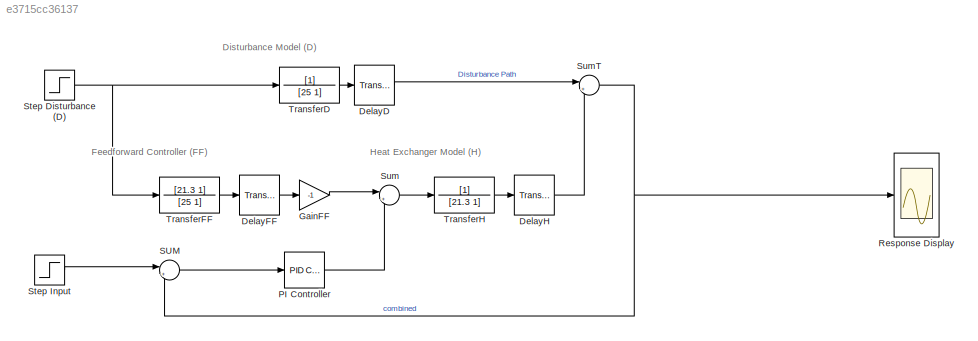
MODEL slx_e3715cc36137
KIND model
CONFIG AbsTol = auto
CONFIG EnableMultiTasking = off
CONFIG FixedStep = auto
CONFIG MaxStep = auto
CONFIG MinStep = auto
CONFIG RelTol = 1e-3
CONFIG SampleTimeConstraint = Unconstrained
CONFIG SolverName = VariableStepAuto
CONFIG StartTime = 0.0
CONFIG StopTime = 500
BLOCK [TransportDelay] DelayD
  DelayTime = 35
BLOCK [TransportDelay] DelayFF
  DelayTime = 20.3
BLOCK [TransportDelay] DelayH
  DelayTime = 14.7
BLOCK [Gain] GainFF
  Gain = -1
BLOCK [Reference] PI Controller  REF=slpidlib/PID Controller
  LibrarySourceBlock = simulink/Continuous/PID Controller
  SourceBlock = slpidlib/PID Controller
  SourceType = PID 1dof
BLOCK [Scope] Response Display
  ActiveDisplayYMaximum = 2.50824409464549
  ActiveDisplayYMinimum = -0.11535121330363884
  Floating = off
  GraphicalSettings = {"Style":{"BackgroundColor":[0.12941176470588237,0.12941176470588237,0.12941176470588237],"AxesColor":[0.07058823529411765,0.07058823529411765,0.07058823529411765],"LabelsColor":[0.8509803921568627,0.8509803921568627,0.8509803921568627],"PreserveColors":false,"Visible":[true,true,true,true,true,true,true],"LineStyle":["-","-","-","-","-","-","-"],"LineWidth":[1.5,1.5,1.5,1.5,1.5,1.5,1.5],"BarWidth...<+2615ch>
  MultipleDisplayCache = [{"MaxYLimMag":2.2500064968924347,"MaxYLimReal":2.50824409464549,"MinYLimMag":0,"MinYLimReal":-0.11535121330363884,"PlotAsMagnitudePhase":false,"ShowGrid":true,"ShowLegend":true,"Title":"%<SignalLabel>","YLabel":""}]
  NumInputPorts = 1
  ScopeFrameLocation = window
  ShowLegend = on
  WasSavedAsWebScope = on
  WindowPosition = [1.000000,49.000000,1280.000000,649.000000,]
BLOCK [Sum] SUM
  Inputs = |+-
BLOCK [Step] Step Disturbance (D)
  SampleTime = 0
  Time = 0
BLOCK [Step] Step Input
  SampleTime = 0
  Time = 0
BLOCK [Sum] Sum
  Inputs = |++
BLOCK [Sum] SumT
  Inputs = |++
BLOCK [TransferFcn] TransferD
  Denominator = [25 1]
BLOCK [TransferFcn] TransferFF
  Denominator = [25 1]
  Numerator = [21.3 1]
BLOCK [TransferFcn] TransferH
  Denominator = [21.3 1]
ANNOTATION (root): Feedforward Controller (FF)
ANNOTATION (root): Disturbance Model (D)
ANNOTATION (root): Heat Exchanger Model (H)
LINE DelayD:1 -> SumT:1
LINE DelayFF:1 -> GainFF:1
LINE DelayH:1 -> SumT:2
LINE GainFF:1 -> Sum:1
LINE PI Controller:1 -> Sum:2
LINE SUM:1 -> PI Controller:1
NET Step Disturbance (D):1 -> TransferD:1, TransferFF:1
LINE Step Input:1 -> SUM:1
LINE Sum:1 -> TransferH:1
NET SumT:1 -> Response Display:1, SUM:2
LINE TransferD:1 -> DelayD:1
LINE TransferFF:1 -> DelayFF:1
LINE TransferH:1 -> DelayH:1
note: NET lines group one-source signal fan-out (src -> all destinations, sorted); 1:1 wires keep LINE
